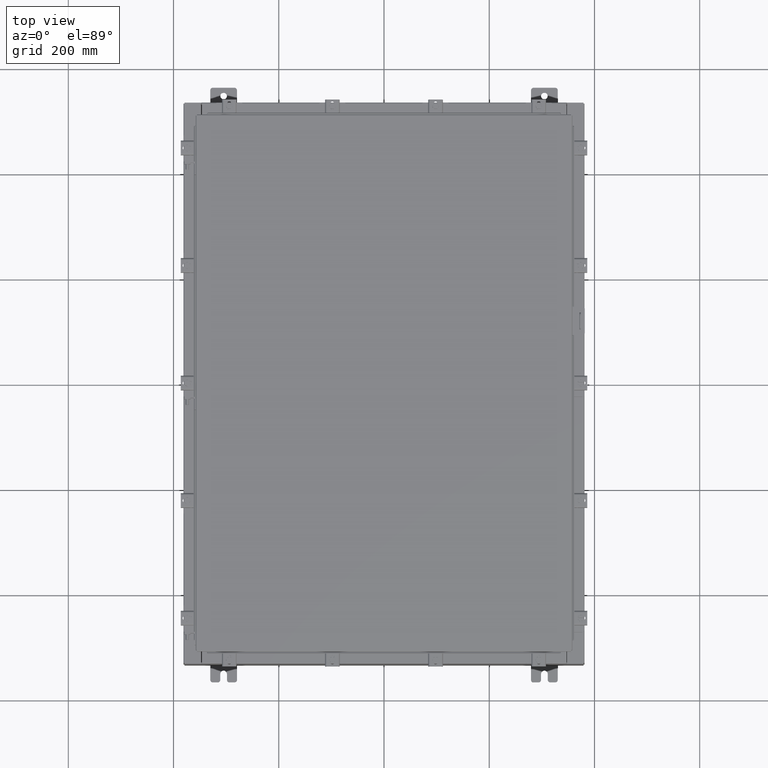
[diagram: clean part render]
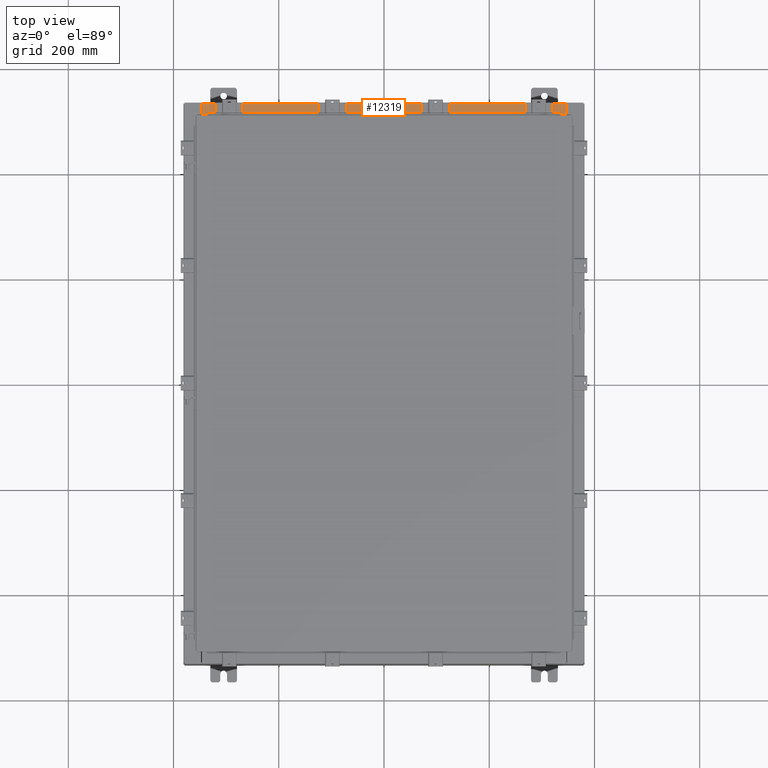
[diagram: same view with one face highlighted and labeled with its STEP entity id]
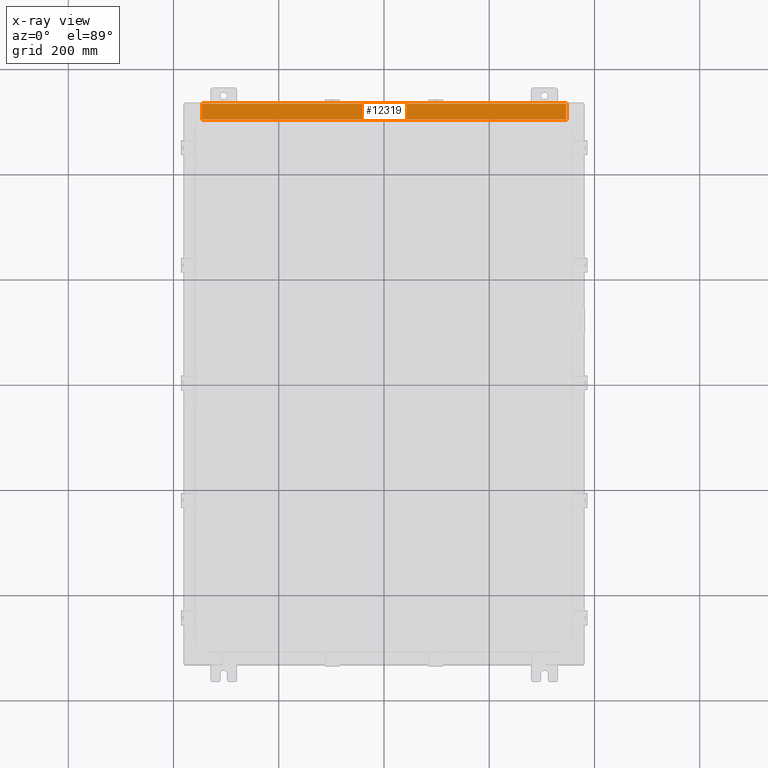
[diagram: x-ray of the same camera — body ghosted, the highlighted face saturated]
A machine part, top view. The second image highlights one B-rep face of the part: STEP entity #12319.
The next image is the same camera in x-ray: the body ghosted, the highlighted face saturated — about 0% of this face is hidden behind the body in this view.
In plain terms, the highlighted planar face has unit normal (0, 0, 1).
Its self-contained STEP definition (entity closure, byte-faithful):
#1168 = VECTOR ( 'NONE', #18882, 39.37007874015748100 ) ;
#2105 = VERTEX_POINT ( 'NONE', #22304 ) ;
#2358 = ORIENTED_EDGE ( 'NONE', *, *, #9555, .T. ) ;
#2716 = VECTOR ( 'NONE', #22459, 39.37007874015748100 ) ;
#3313 = LINE ( 'NONE', #20569, #2716 ) ;
#5170 = DIRECTION ( 'NONE',  ( -1.000000000000000000, 0.0000000000000000000, 0.0000000000000000000 ) ) ;
#5206 = VERTEX_POINT ( 'NONE', #20185 ) ;
#5716 = ORIENTED_EDGE ( 'NONE', *, *, #11141, .F. ) ;
#6263 = VERTEX_POINT ( 'NONE', #15969 ) ;
#9555 = EDGE_CURVE ( 'NONE', #2105, #5206, #3313, .T. ) ;
#9729 = CARTESIAN_POINT ( 'NONE',  ( -13.63719999999999800, -0.07469999999999973900, 4.000000000000000000 ) ) ;
#9888 = LINE ( 'NONE', #9729, #19357 ) ;
#10359 = EDGE_CURVE ( 'NONE', #6263, #5206, #9888, .T. ) ;
#11012 = ORIENTED_EDGE ( 'NONE', *, *, #10359, .F. ) ;
#11134 = DIRECTION ( 'NONE',  ( 0.0000000000000000000, 3.566381192773190000E-015, 1.000000000000000000 ) ) ;
#11141 = EDGE_CURVE ( 'NONE', #2105, #12013, #16367, .T. ) ;
#11610 = DIRECTION ( 'NONE',  ( -0.0000000000000000000, 1.000000000000000000, -3.566381192773190000E-015 ) ) ;
#12013 = VERTEX_POINT ( 'NONE', #12067 ) ;
#12067 = CARTESIAN_POINT ( 'NONE',  ( 13.63720000000000400, -1.287299999999999900, 4.000000000000004400 ) ) ;
#12319 = ADVANCED_FACE ( 'NONE', ( #21012 ), #22445, .T. ) ;
#12801 = LINE ( 'NONE', #14679, #22246 ) ;
#13187 = CARTESIAN_POINT ( 'NONE',  ( 13.63720000000000400, -1.300299999999999800, 4.000000000000004400 ) ) ;
#14679 = CARTESIAN_POINT ( 'NONE',  ( 13.63720000000000400, -1.287299999999999900, 4.000000000000003600 ) ) ;
#15659 = EDGE_LOOP ( 'NONE', ( #11012, #24461, #5716, #2358 ) ) ;
#15969 = CARTESIAN_POINT ( 'NONE',  ( -13.63719999999999800, -1.287299999999999200, 4.000000000000004400 ) ) ;
#16367 = LINE ( 'NONE', #13187, #1168 ) ;
#18573 = CARTESIAN_POINT ( 'NONE',  ( 0.0000000000000000000, 1.425992975200418500E-014, 4.000000000000000000 ) ) ;
#18882 = DIRECTION ( 'NONE',  ( -0.0000000000000000000, -1.000000000000000000, 3.566381192773190000E-015 ) ) ;
#19357 = VECTOR ( 'NONE', #11610, 39.37007874015748100 ) ;
#20185 = CARTESIAN_POINT ( 'NONE',  ( -13.63719999999999800, -0.08770000000000000000, 4.000000000000000000 ) ) ;
#20569 = CARTESIAN_POINT ( 'NONE',  ( -1.756834753793995900E-018, -0.08770000000000000000, 4.000000000000000900 ) ) ;
#21012 = FACE_OUTER_BOUND ( 'NONE', #15659, .T. ) ;
#22246 = VECTOR ( 'NONE', #5170, 39.37007874015748100 ) ;
#22304 = CARTESIAN_POINT ( 'NONE',  ( 13.63720000000000400, -0.08769999999999965300, 4.000000000000000000 ) ) ;
#22445 = PLANE ( 'NONE',  #22723 ) ;
#22459 = DIRECTION ( 'NONE',  ( -1.000000000000000000, 2.003232330437526000E-017, -7.144290108027600900E-032 ) ) ;
#22723 = AXIS2_PLACEMENT_3D ( 'NONE', #18573, #11134, #24366 ) ;
#23815 = EDGE_CURVE ( 'NONE', #12013, #6263, #12801, .T. ) ;
#24366 = DIRECTION ( 'NONE',  ( 0.0000000000000000000, -1.000000000000000000, 3.566381192773190000E-015 ) ) ;
#24461 = ORIENTED_EDGE ( 'NONE', *, *, #23815, .F. ) ;